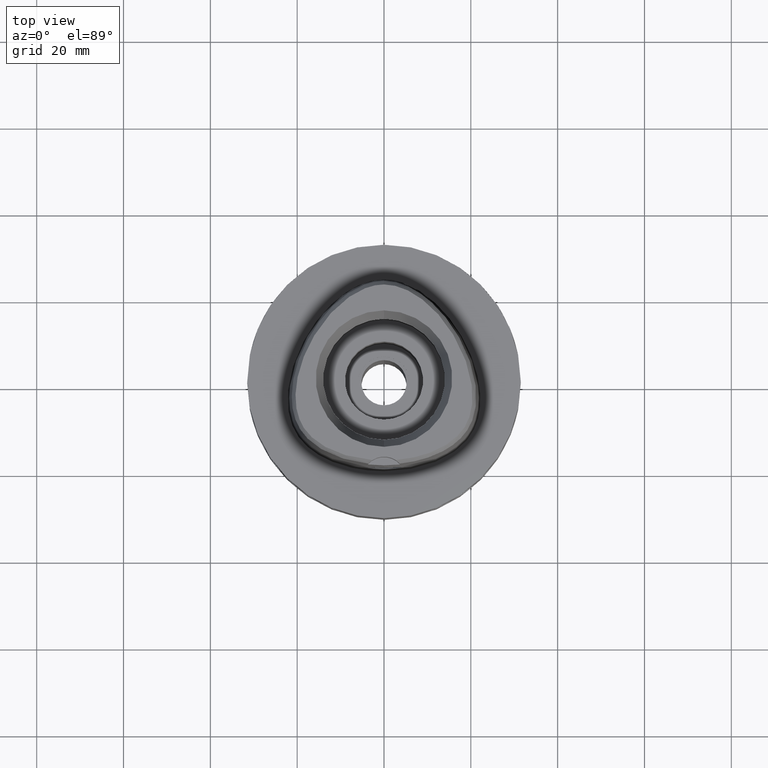
[diagram: clean part render]
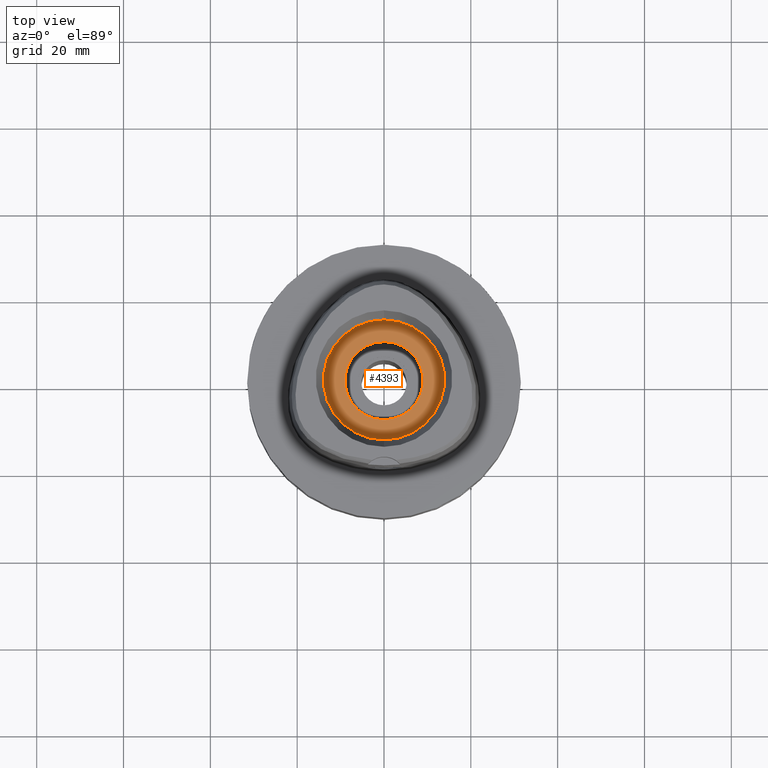
[diagram: same view with one face highlighted and labeled with its STEP entity id]
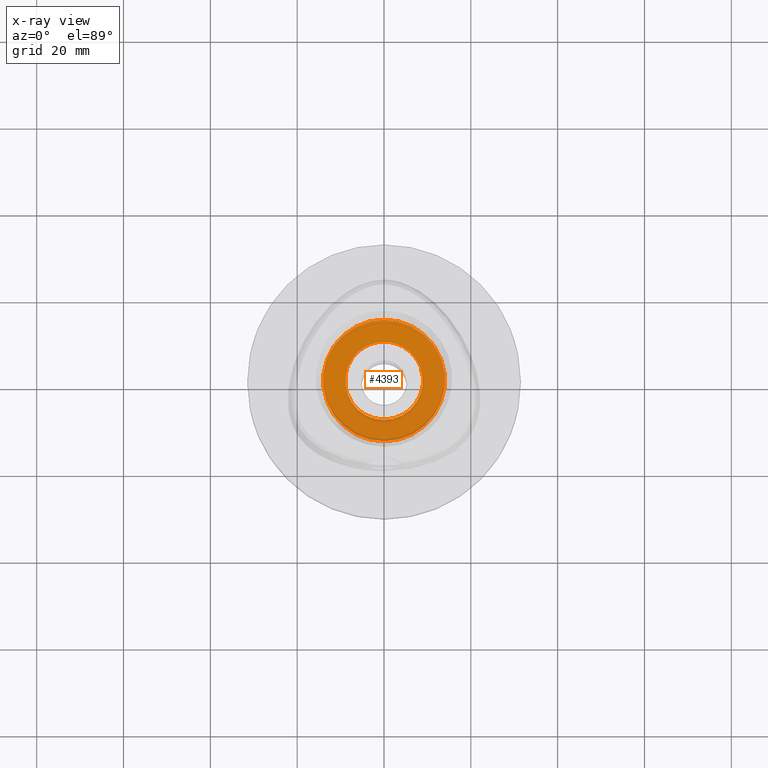
[diagram: x-ray of the same camera — body ghosted, the highlighted face saturated]
A machine part, top view. The second image highlights one B-rep face of the part: STEP entity #4393.
The next image is the same camera in x-ray: the body ghosted, the highlighted face saturated — about 3% of this face is hidden behind the body in this view.
In plain terms, the highlighted planar face has unit normal (0, 0, -1).
Its self-contained STEP definition (entity closure, byte-faithful):
#92 = CARTESIAN_POINT ( 'NONE',  ( 0.0000000000000000000, -14.00000000000000000, 11.00000000000000000 ) ) ;
#297 = FACE_OUTER_BOUND ( 'NONE', #736, .T. ) ;
#308 = EDGE_LOOP ( 'NONE', ( #1484, #2598 ) ) ;
#677 = CIRCLE ( 'NONE', #1307, 9.000000000000000000 ) ;
#736 = EDGE_LOOP ( 'NONE', ( #5104, #3666 ) ) ;
#895 = AXIS2_PLACEMENT_3D ( 'NONE', #3446, #2094, #1214 ) ;
#1214 = DIRECTION ( 'NONE',  ( 0.0000000000000000000, -1.000000000000000000, 0.0000000000000000000 ) ) ;
#1221 = CARTESIAN_POINT ( 'NONE',  ( 0.0000000000000000000, 0.0000000000000000000, 11.00000000000000000 ) ) ;
#1307 = AXIS2_PLACEMENT_3D ( 'NONE', #2715, #4434, #4015 ) ;
#1484 = ORIENTED_EDGE ( 'NONE', *, *, #3087, .F. ) ;
#1640 = DIRECTION ( 'NONE',  ( 0.0000000000000000000, 1.000000000000000000, 0.0000000000000000000 ) ) ;
#1662 = AXIS2_PLACEMENT_3D ( 'NONE', #1221, #5046, #1640 ) ;
#2094 = DIRECTION ( 'NONE',  ( 0.0000000000000000000, 0.0000000000000000000, -1.000000000000000000 ) ) ;
#2186 = EDGE_CURVE ( 'NONE', #4239, #2868, #3131, .T. ) ;
#2463 = FACE_BOUND ( 'NONE', #308, .T. ) ;
#2598 = ORIENTED_EDGE ( 'NONE', *, *, #5488, .F. ) ;
#2669 = EDGE_CURVE ( 'NONE', #2868, #4239, #2831, .T. ) ;
#2715 = CARTESIAN_POINT ( 'NONE',  ( 0.0000000000000000000, 0.0000000000000000000, 11.00000000000000000 ) ) ;
#2831 = CIRCLE ( 'NONE', #1662, 14.00000000000000000 ) ;
#2836 = CARTESIAN_POINT ( 'NONE',  ( 0.0000000000000000000, 0.0000000000000000000, 11.00000000000000000 ) ) ;
#2857 = DIRECTION ( 'NONE',  ( 0.0000000000000000000, 0.0000000000000000000, -1.000000000000000000 ) ) ;
#2868 = VERTEX_POINT ( 'NONE', #4385 ) ;
#2967 = DIRECTION ( 'NONE',  ( 0.0000000000000000000, -1.000000000000000000, 0.0000000000000000000 ) ) ;
#3087 = EDGE_CURVE ( 'NONE', #5045, #4890, #4804, .T. ) ;
#3095 = AXIS2_PLACEMENT_3D ( 'NONE', #2836, #4561, #2967 ) ;
#3131 = CIRCLE ( 'NONE', #895, 14.00000000000000000 ) ;
#3446 = CARTESIAN_POINT ( 'NONE',  ( 0.0000000000000000000, 0.0000000000000000000, 11.00000000000000000 ) ) ;
#3666 = ORIENTED_EDGE ( 'NONE', *, *, #2669, .F. ) ;
#3828 = CARTESIAN_POINT ( 'NONE',  ( 0.0000000000000000000, -9.000000000000000000, 11.00000000000000000 ) ) ;
#4004 = AXIS2_PLACEMENT_3D ( 'NONE', #4579, #2857, #5494 ) ;
#4015 = DIRECTION ( 'NONE',  ( 0.0000000000000000000, 1.000000000000000000, 0.0000000000000000000 ) ) ;
#4120 = CARTESIAN_POINT ( 'NONE',  ( 0.0000000000000000000, 9.000000000000000000, 11.00000000000000000 ) ) ;
#4159 = PLANE ( 'NONE',  #4004 ) ;
#4239 = VERTEX_POINT ( 'NONE', #92 ) ;
#4385 = CARTESIAN_POINT ( 'NONE',  ( 0.0000000000000000000, 14.00000000000000000, 11.00000000000000000 ) ) ;
#4393 = ADVANCED_FACE ( 'NONE', ( #297, #2463 ), #4159, .F. ) ;
#4434 = DIRECTION ( 'NONE',  ( 0.0000000000000000000, 0.0000000000000000000, 1.000000000000000000 ) ) ;
#4561 = DIRECTION ( 'NONE',  ( 0.0000000000000000000, 0.0000000000000000000, 1.000000000000000000 ) ) ;
#4579 = CARTESIAN_POINT ( 'NONE',  ( 0.0000000000000000000, 0.0000000000000000000, 11.00000000000000000 ) ) ;
#4804 = CIRCLE ( 'NONE', #3095, 9.000000000000000000 ) ;
#4890 = VERTEX_POINT ( 'NONE', #4120 ) ;
#5045 = VERTEX_POINT ( 'NONE', #3828 ) ;
#5046 = DIRECTION ( 'NONE',  ( 0.0000000000000000000, 0.0000000000000000000, -1.000000000000000000 ) ) ;
#5104 = ORIENTED_EDGE ( 'NONE', *, *, #2186, .F. ) ;
#5488 = EDGE_CURVE ( 'NONE', #4890, #5045, #677, .T. ) ;
#5494 = DIRECTION ( 'NONE',  ( 0.0000000000000000000, -1.000000000000000000, 0.0000000000000000000 ) ) ;